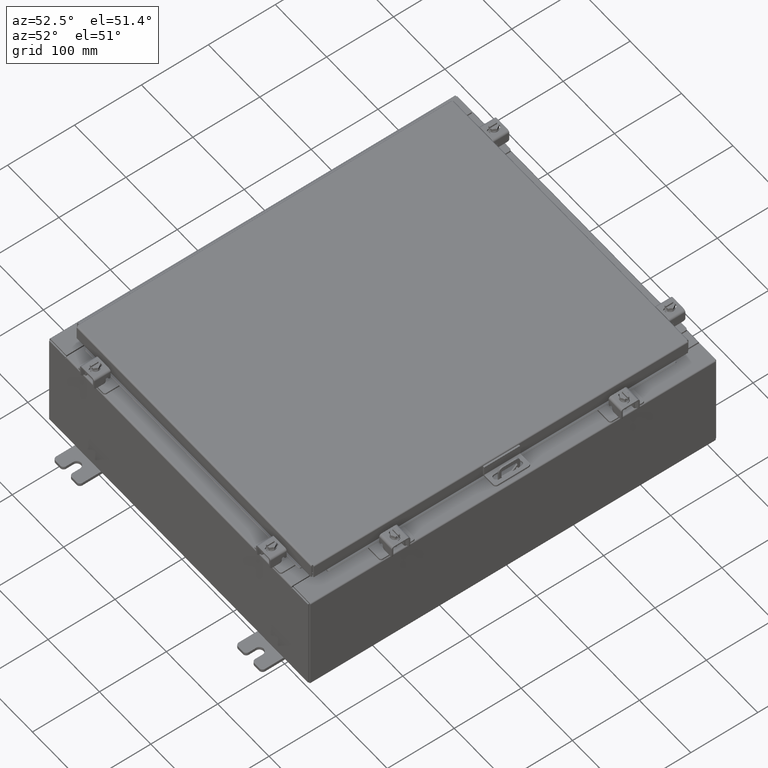
[diagram: clean part render]
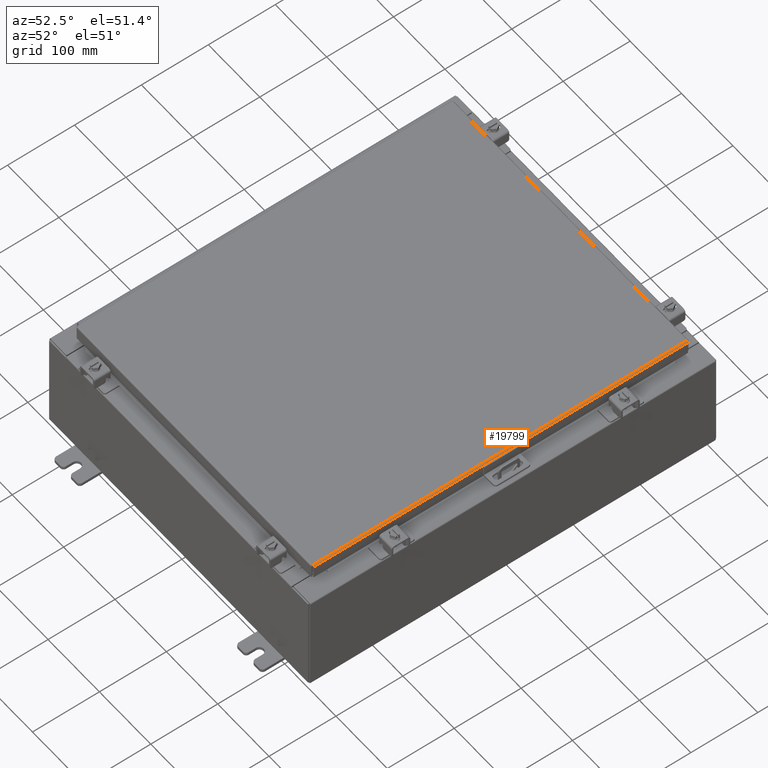
[diagram: same view with one face highlighted and labeled with its STEP entity id]
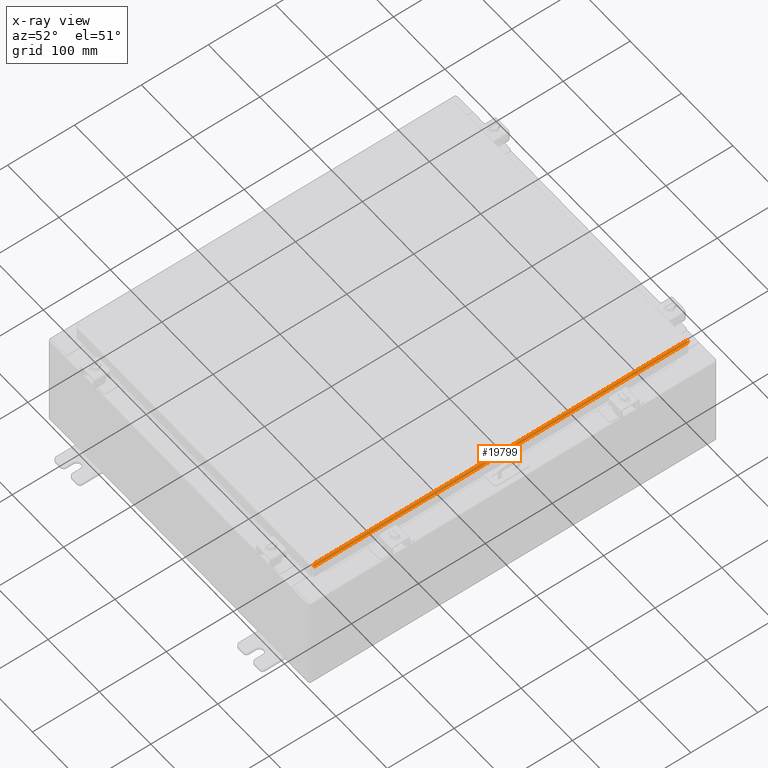
[diagram: x-ray of the same camera — body ghosted, the highlighted face saturated]
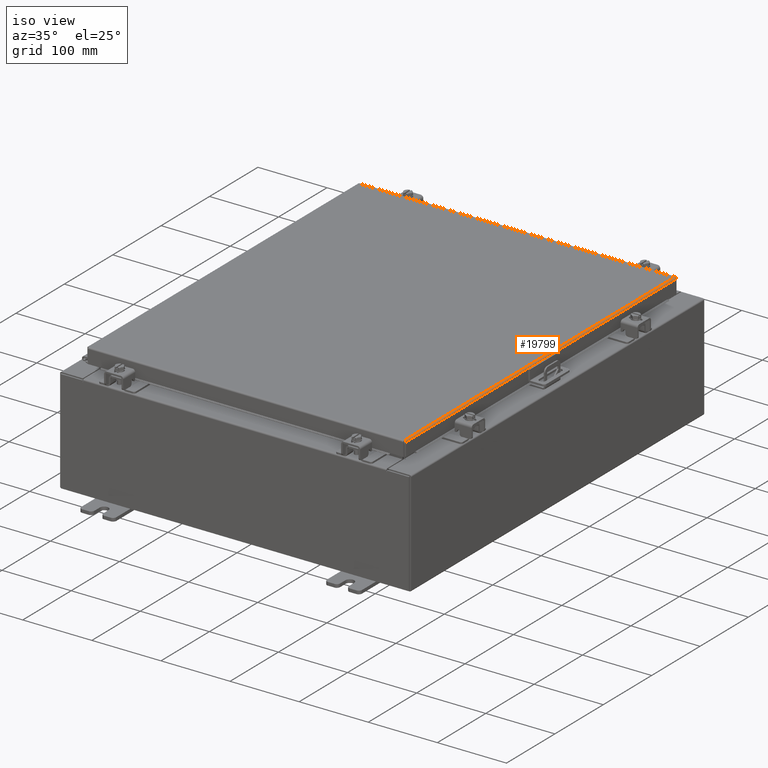
[diagram: same view with one face highlighted and labeled with its STEP entity id]
A machine part, auxiliary view. The second image highlights one B-rep face of the part: STEP entity #19799.
The next image is the same camera in x-ray: the body ghosted, the highlighted face saturated — about 0% of this face is hidden behind the body in this view.
A second angle (iso view) of the same face is appended — the face is thin or edge-on in the first view.
In plain terms, the highlighted cylindrical surface (edge-blend (fillet) strip) has radius 2.2276 mm, axis along (-0, -1, -0).
Its self-contained STEP definition (entity closure, byte-faithful):
#304 = CARTESIAN_POINT ( 'NONE',  ( 9.075717403743809100, 11.00534822031356400, -0.06474471054169121700 ) ) ;
#753 = EDGE_CURVE ( 'NONE', #29513, #21266, #24647, .T. ) ;
#1302 = EDGE_CURVE ( 'NONE', #22427, #31088, #4163, .T. ) ;
#1541 = CARTESIAN_POINT ( 'NONE',  ( 9.077999999999999400, -11.00515786437626900, -0.08770000000000007000 ) ) ;
#2885 = CARTESIAN_POINT ( 'NONE',  ( 9.077999999999999400, 11.00515786437627100, -0.08770000000000007000 ) ) ;
#3064 = CARTESIAN_POINT ( 'NONE',  ( 8.990299999999997700, -11.00630000000000000, -2.048885995248197400E-016 ) ) ;
#3109 = DIRECTION ( 'NONE',  ( -0.0000000000000000000, -1.000000000000000000, -0.0000000000000000000 ) ) ;
#3569 = DIRECTION ( 'NONE',  ( 0.0000000000000000000, -1.000000000000000000, 0.0000000000000000000 ) ) ;
#4039 = CARTESIAN_POINT ( 'NONE',  ( 9.077999999999999400, -11.00515786437626900, -0.08770000000000007000 ) ) ;
#4163 = LINE ( 'NONE', #3064, #10060 ) ;
#4346 = CARTESIAN_POINT ( 'NONE',  ( 9.077999999999999400, 0.0000000000000000000, -0.08770000000000007000 ) ) ;
#4922 = ORIENTED_EDGE ( 'NONE', *, *, #10003, .F. ) ;
#5318 = CARTESIAN_POINT ( 'NONE',  ( 8.990299999999999500, 11.00630000000000000, -2.048885995248197400E-016 ) ) ;
#5638 = CARTESIAN_POINT ( 'NONE',  ( 8.990299999999997700, -11.00630000000000000, -0.08770000000000030500 ) ) ;
#6872 = ORIENTED_EDGE ( 'NONE', *, *, #753, .F. ) ;
#7683 = B_SPLINE_CURVE_WITH_KNOTS ( 'NONE', 3,
 ( #4039, #18962, #23979, #9104, #26512, #11625, #29044, #14104, #31590, #16588 ),
 .UNSPECIFIED., .F., .F.,
 ( 4, 2, 2, 2, 4 ),
 ( 0.0000000000000000000, 0.2500000000000000000, 0.5000000000000000000, 0.7500000000000000000, 1.000000000000000000 ),
 .UNSPECIFIED. ) ;
#8282 = ORIENTED_EDGE ( 'NONE', *, *, #1302, .F. ) ;
#9104 = CARTESIAN_POINT ( 'NONE',  ( 9.066931066258664600, -11.00553857625084800, -0.04353261542147222900 ) ) ;
#10003 = EDGE_CURVE ( 'NONE', #31088, #29513, #13462, .T. ) ;
#10060 = VECTOR ( 'NONE', #11282, 39.37007874015748100 ) ;
#10915 = EDGE_CURVE ( 'NONE', #21266, #22427, #7683, .T. ) ;
#11282 = DIRECTION ( 'NONE',  ( 0.0000000000000000000, 1.000000000000000000, 0.0000000000000000000 ) ) ;
#11625 = CARTESIAN_POINT ( 'NONE',  ( 9.044195747341797500, -11.00582411015677800, -0.01756921792167976500 ) ) ;
#12877 = CARTESIAN_POINT ( 'NONE',  ( 9.044195747341799300, 11.00582411015678200, -0.01756921792167976500 ) ) ;
#13017 = VECTOR ( 'NONE', #3569, 39.37007874015748100 ) ;
#13462 = B_SPLINE_CURVE_WITH_KNOTS ( 'NONE', 3,
 ( #5318, #25265, #22613, #27761, #12877, #30340, #15329, #304, #17817, #2885 ),
 .UNSPECIFIED., .F., .F.,
 ( 4, 2, 2, 2, 4 ),
 ( 0.0000000000000000000, 0.2500000000000000000, 0.5000000000000000000, 0.7500000000000000000, 1.000000000000000000 ),
 .UNSPECIFIED. ) ;
#14104 = CARTESIAN_POINT ( 'NONE',  ( 9.013255289458308900, -11.00610964406271100, -0.002282596256188923000 ) ) ;
#15329 = CARTESIAN_POINT ( 'NONE',  ( 9.066931066258666400, 11.00553857625084800, -0.04353261542147223600 ) ) ;
#16588 = CARTESIAN_POINT ( 'NONE',  ( 8.990299999999997700, -11.00630000000000000, -2.048885995248197400E-016 ) ) ;
#17817 = CARTESIAN_POINT ( 'NONE',  ( 9.078000000000001200, 11.00525304234491700, -0.07622009684500738500 ) ) ;
#18771 = ORIENTED_EDGE ( 'NONE', *, *, #10915, .F. ) ;
#18962 = CARTESIAN_POINT ( 'NONE',  ( 9.077999999999999400, -11.00525304234491000, -0.07622009684500735700 ) ) ;
#19799 = ADVANCED_FACE ( 'NONE', ( #31892 ), #23616, .T. ) ;
#21266 = VERTEX_POINT ( 'NONE', #1541 ) ;
#22427 = VERTEX_POINT ( 'NONE', #25956 ) ;
#22613 = CARTESIAN_POINT ( 'NONE',  ( 9.013255289458310700, 11.00610964406271500, -0.002282596256188923400 ) ) ;
#23323 = AXIS2_PLACEMENT_3D ( 'NONE', #5638, #3109, #25458 ) ;
#23616 = CYLINDRICAL_SURFACE ( 'NONE', #23323, 0.08770000000000026400 ) ;
#23979 = CARTESIAN_POINT ( 'NONE',  ( 9.075717403743809100, -11.00534822031355900, -0.06474471054169121700 ) ) ;
#24647 = LINE ( 'NONE', #4346, #13017 ) ;
#25265 = CARTESIAN_POINT ( 'NONE',  ( 9.001779903154989900, 11.00620482203135200, -2.037881236484656600E-016 ) ) ;
#25458 = DIRECTION ( 'NONE',  ( 1.000000000000000000, 0.0000000000000000000, 2.725618009642215600E-015 ) ) ;
#25797 = CARTESIAN_POINT ( 'NONE',  ( 8.990299999999999500, 11.00630000000000000, -2.048885995248197400E-016 ) ) ;
#25956 = CARTESIAN_POINT ( 'NONE',  ( 8.990299999999997700, -11.00630000000000000, -2.048885995248197400E-016 ) ) ;
#26512 = CARTESIAN_POINT ( 'NONE',  ( 9.060430782078318800, -11.00563375421949200, -0.03380425265820009200 ) ) ;
#26802 = EDGE_LOOP ( 'NONE', ( #8282, #18771, #6872, #4922 ) ) ;
#27761 = CARTESIAN_POINT ( 'NONE',  ( 9.034467384578528400, 11.00591928812542400, -0.01106893374133176100 ) ) ;
#29044 = CARTESIAN_POINT ( 'NONE',  ( 9.034467384578528400, -11.00591928812542100, -0.01106893374133176100 ) ) ;
#29513 = VERTEX_POINT ( 'NONE', #32145 ) ;
#30340 = CARTESIAN_POINT ( 'NONE',  ( 9.060430782078317000, 11.00563375421949200, -0.03380425265820009900 ) ) ;
#31088 = VERTEX_POINT ( 'NONE', #25797 ) ;
#31590 = CARTESIAN_POINT ( 'NONE',  ( 9.001779903154991700, -11.00620482203135400, -2.038214714022946300E-016 ) ) ;
#31892 = FACE_OUTER_BOUND ( 'NONE', #26802, .T. ) ;
#32145 = CARTESIAN_POINT ( 'NONE',  ( 9.077999999999999400, 11.00515786437627100, -0.08770000000000007000 ) ) ;